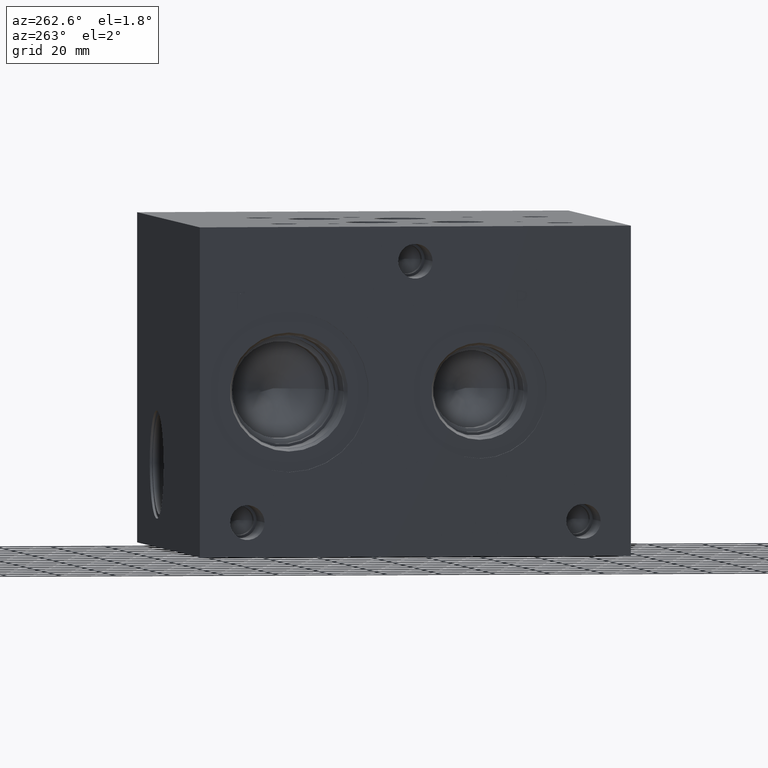
[diagram: clean part render]
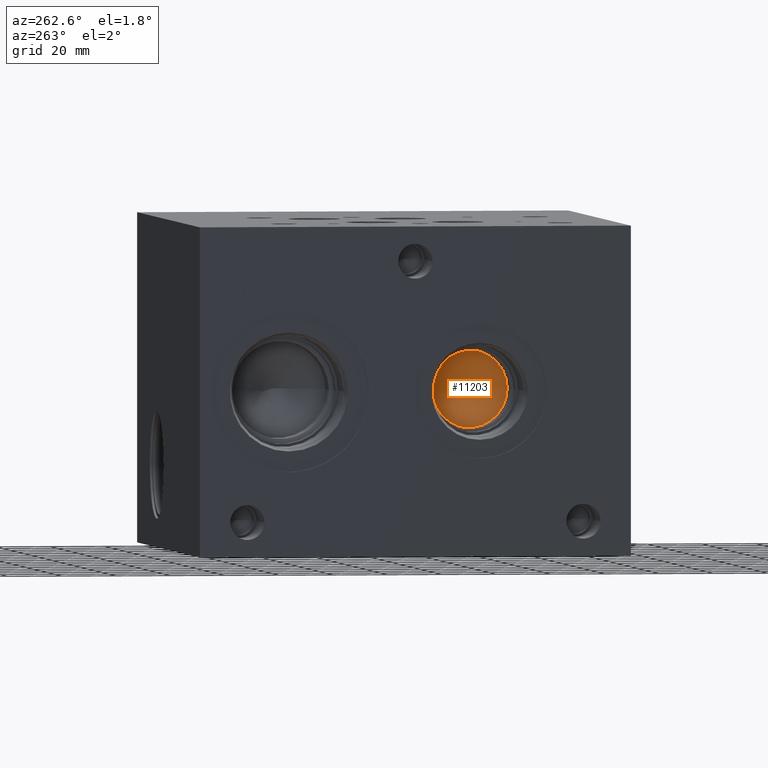
[diagram: same view with one face highlighted and labeled with its STEP entity id]
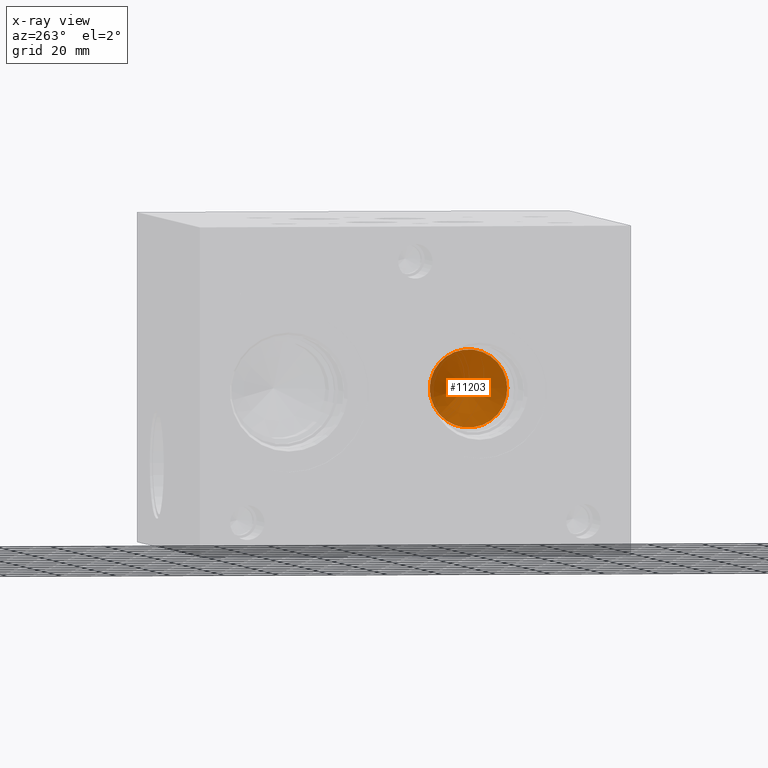
[diagram: x-ray of the same camera — body ghosted, the highlighted face saturated]
A machine part, auxiliary view. The second image highlights one B-rep face of the part: STEP entity #11203.
The next image is the same camera in x-ray: the body ghosted, the highlighted face saturated — about 2% of this face is hidden behind the body in this view.
In plain terms, the highlighted conical surface has half-angle 60 deg.
Its self-contained STEP definition (entity closure, byte-faithful):
#32=CONICAL_SURFACE('',#11806,7.14375,1.0471975511966);
#255=CIRCLE('',#11807,14.2875);
#256=CIRCLE('',#11808,14.2875);
#1320=FACE_OUTER_BOUND('',#1967,.T.);
#1967=EDGE_LOOP('',(#9451,#9452,#9453,#9454));
#3080=LINE('',#18762,#4141);
#4141=VECTOR('',#14026,7.14375);
#5120=VERTEX_POINT('',#18758);
#5121=VERTEX_POINT('',#18759);
#5122=VERTEX_POINT('',#18761);
#6617=EDGE_CURVE('',#5120,#5121,#255,.T.);
#6618=EDGE_CURVE('',#5121,#5122,#3080,.T.);
#6619=EDGE_CURVE('',#5121,#5120,#256,.T.);
#9451=ORIENTED_EDGE('',*,*,#6617,.T.);
#9452=ORIENTED_EDGE('',*,*,#6618,.T.);
#9453=ORIENTED_EDGE('',*,*,#6618,.F.);
#9454=ORIENTED_EDGE('',*,*,#6619,.T.);
#11203=ADVANCED_FACE('',(#1320),#32,.F.);
#11806=AXIS2_PLACEMENT_3D('',#18757,#14022,#14023);
#11807=AXIS2_PLACEMENT_3D('',#18760,#14024,#14025);
#11808=AXIS2_PLACEMENT_3D('',#18763,#14027,#14028);
#14022=DIRECTION('center_axis',(-1.,0.,0.));
#14023=DIRECTION('ref_axis',(0.,1.,0.));
#14024=DIRECTION('center_axis',(-1.,0.,0.));
#14025=DIRECTION('ref_axis',(0.,1.,0.));
#14026=DIRECTION('',(0.5,0.866025403784438,-1.06057523872491E-16));
#14027=DIRECTION('center_axis',(-1.,0.,0.));
#14028=DIRECTION('ref_axis',(0.,1.,0.));
#18757=CARTESIAN_POINT('Origin',(36.7725059855234,55.5752,60.325));
#18758=CARTESIAN_POINT('',(32.64806,69.8627,60.325));
#18759=CARTESIAN_POINT('',(32.64806,41.2877,60.325));
#18760=CARTESIAN_POINT('Origin',(32.64806,55.5752,60.325));
#18761=CARTESIAN_POINT('',(40.8969519710468,55.5752,60.325));
#18762=CARTESIAN_POINT('',(36.7725059855234,48.43145,60.325));
#18763=CARTESIAN_POINT('Origin',(32.64806,55.5752,60.325));